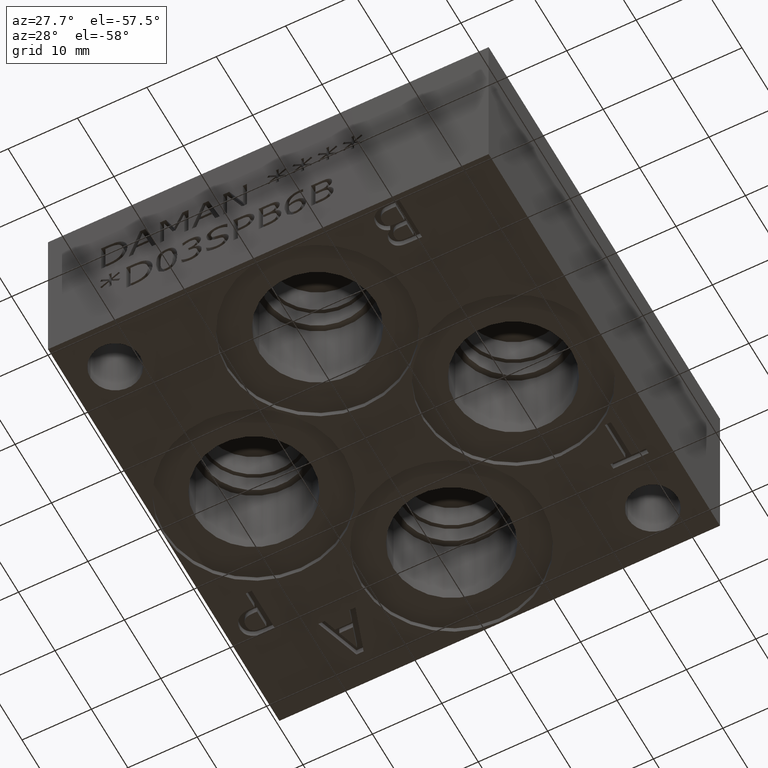
[diagram: clean part render]
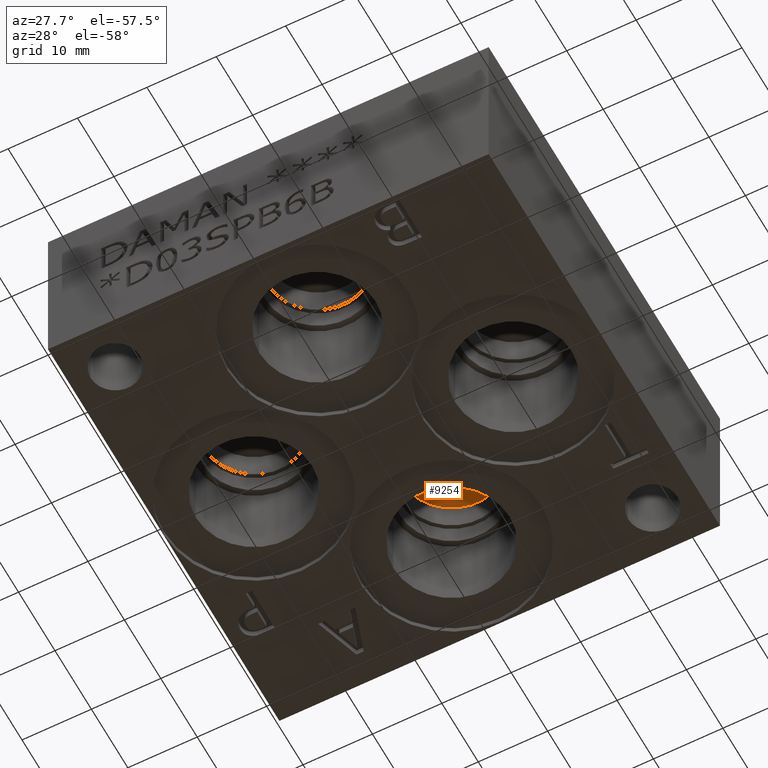
[diagram: same view with one face highlighted and labeled with its STEP entity id]
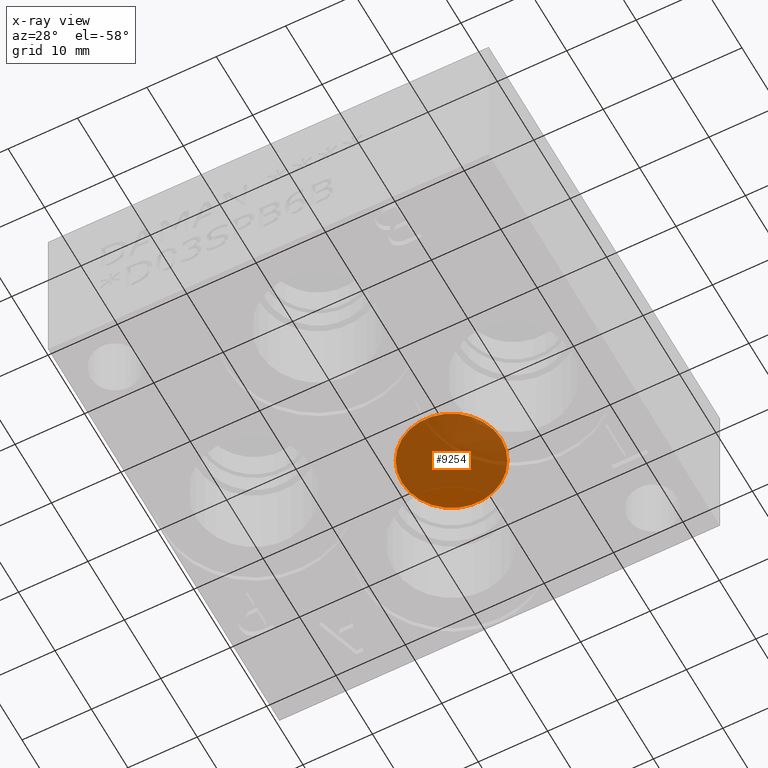
[diagram: x-ray of the same camera — body ghosted, the highlighted face saturated]
A machine part, auxiliary view. The second image highlights one B-rep face of the part: STEP entity #9254.
The next image is the same camera in x-ray: the body ghosted, the highlighted face saturated — about 88% of this face is hidden behind the body in this view.
In plain terms, the highlighted conical surface has half-angle 60 deg.
Its self-contained STEP definition (entity closure, byte-faithful):
#18=CONICAL_SURFACE('',#9646,3.5687,1.0471975511966);
#109=CIRCLE('',#9647,7.1374);
#110=CIRCLE('',#9648,7.1374);
#958=FACE_OUTER_BOUND('',#1480,.T.);
#1480=EDGE_LOOP('',(#8052,#8053,#8054,#8055));
#2388=LINE('',#15756,#3268);
#3268=VECTOR('',#11272,3.5687);
#4373=VERTEX_POINT('',#15752);
#4374=VERTEX_POINT('',#15753);
#4375=VERTEX_POINT('',#15755);
#5626=EDGE_CURVE('',#4373,#4374,#109,.T.);
#5627=EDGE_CURVE('',#4374,#4375,#2388,.T.);
#5628=EDGE_CURVE('',#4374,#4373,#110,.T.);
#8052=ORIENTED_EDGE('',*,*,#5626,.T.);
#8053=ORIENTED_EDGE('',*,*,#5627,.T.);
#8054=ORIENTED_EDGE('',*,*,#5627,.F.);
#8055=ORIENTED_EDGE('',*,*,#5628,.T.);
#9254=ADVANCED_FACE('',(#958),#18,.F.);
#9646=AXIS2_PLACEMENT_3D('',#15751,#11268,#11269);
#9647=AXIS2_PLACEMENT_3D('',#15754,#11270,#11271);
#9648=AXIS2_PLACEMENT_3D('',#15757,#11273,#11274);
#11268=DIRECTION('center_axis',(0.,0.,-1.));
#11269=DIRECTION('ref_axis',(1.,0.,0.));
#11270=DIRECTION('center_axis',(0.,0.,-1.));
#11271=DIRECTION('ref_axis',(1.,0.,0.));
#11272=DIRECTION('',(0.866025403784439,-1.06057523872491E-16,0.5));
#11273=DIRECTION('center_axis',(0.,0.,-1.));
#11274=DIRECTION('ref_axis',(1.,0.,0.));
#15751=CARTESIAN_POINT('Origin',(31.75,50.292,22.278789905657));
#15752=CARTESIAN_POINT('',(38.8874,50.292,20.2184));
#15753=CARTESIAN_POINT('',(24.6126,50.292,20.2184));
#15754=CARTESIAN_POINT('Origin',(31.75,50.292,20.2184));
#15755=CARTESIAN_POINT('',(31.75,50.292,24.339179811314));
#15756=CARTESIAN_POINT('',(28.1813,50.292,22.278789905657));
#15757=CARTESIAN_POINT('Origin',(31.75,50.292,20.2184));